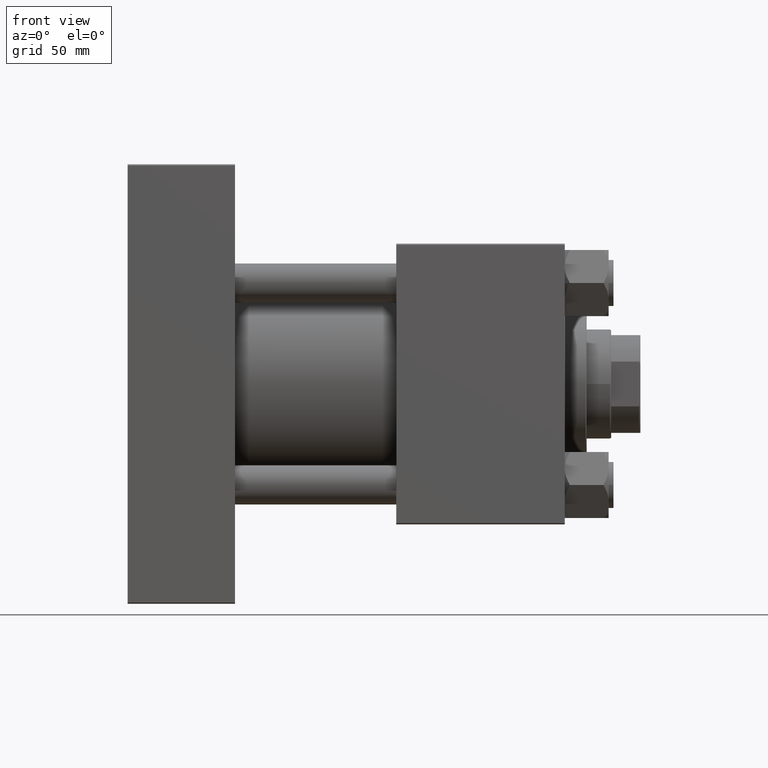
[diagram: clean part render]
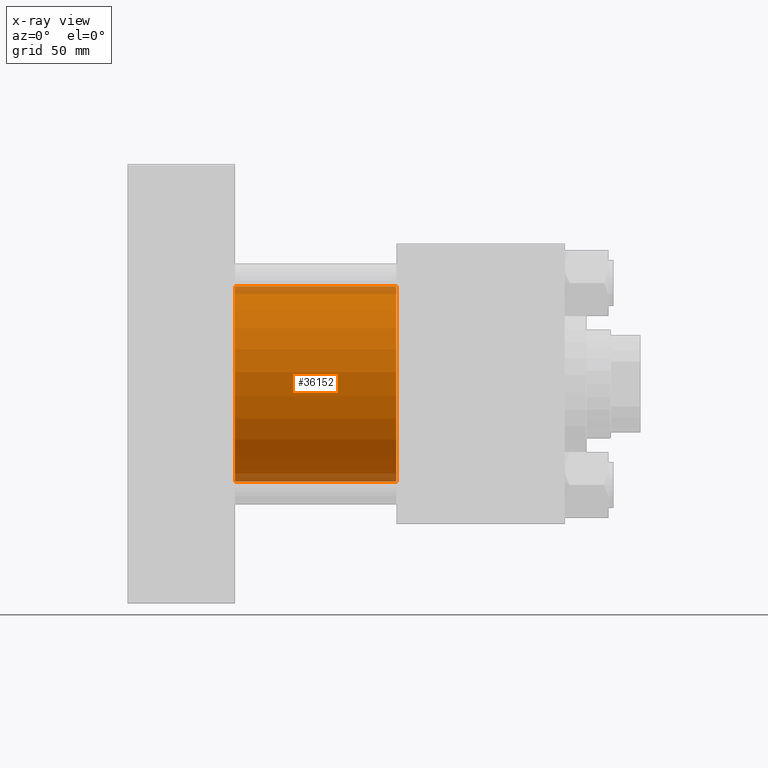
[diagram: x-ray — body ghosted, one internal face saturated and labeled with its STEP entity id]
A machine part, front view, then the same camera in x-ray: the body is ghosted and one INTERNAL B-rep face — a face not visible from any outside direction — is saturated and labeled: STEP entity #36152.
In plain terms, the highlighted cylindrical surface (partial cylindrical patch) has radius 40 mm, axis along (-1, -0, -0).
Its self-contained STEP definition (entity closure, byte-faithful):
#2167 = LINE ( 'NONE', #37579, #16034 ) ;
#2783 = CYLINDRICAL_SURFACE ( 'NONE', #38092, 40.00000000000000000 ) ;
#4569 = CARTESIAN_POINT ( 'NONE',  ( 110.0000000000000000, -2.602085213965210642E-15, 0.000000000000000000 ) ) ;
#6501 = EDGE_CURVE ( 'NONE', #7836, #30189, #17812, .T. ) ;
#7836 = VERTEX_POINT ( 'NONE', #15927 ) ;
#11012 = ORIENTED_EDGE ( 'NONE', *, *, #34172, .T. ) ;
#12239 = ORIENTED_EDGE ( 'NONE', *, *, #6501, .T. ) ;
#13770 = DIRECTION ( 'NONE',  ( -1.000000000000000000, -0.000000000000000000, -0.000000000000000000 ) ) ;
#15321 = CARTESIAN_POINT ( 'NONE',  ( 44.00000000000000000, -2.602085213965210642E-15, 40.00000000000000000 ) ) ;
#15927 = CARTESIAN_POINT ( 'NONE',  ( 110.0000000000000000, -2.602085213965210642E-15, 40.00000000000000000 ) ) ;
#16034 = VECTOR ( 'NONE', #38094, 1000.000000000000000 ) ;
#16330 = CARTESIAN_POINT ( 'NONE',  ( 110.0000000000000000, -2.602085213965210642E-15, 40.00000000000000000 ) ) ;
#17500 = EDGE_CURVE ( 'NONE', #7836, #27847, #43606, .T. ) ;
#17812 = CIRCLE ( 'NONE', #47910, 40.00000000000000000 ) ;
#19713 = CARTESIAN_POINT ( 'NONE',  ( 44.00000000000000000, 2.296501982624201990E-15, -40.00000000000000000 ) ) ;
#21604 = DIRECTION ( 'NONE',  ( 1.000000000000000000, 0.000000000000000000, 0.000000000000000000 ) ) ;
#21818 = VERTEX_POINT ( 'NONE', #19713 ) ;
#21907 = FACE_OUTER_BOUND ( 'NONE', #36975, .T. ) ;
#25818 = AXIS2_PLACEMENT_3D ( 'NONE', #33813, #21604, #40981 ) ;
#27847 = VERTEX_POINT ( 'NONE', #15321 ) ;
#30189 = VERTEX_POINT ( 'NONE', #44555 ) ;
#31101 = EDGE_CURVE ( 'NONE', #27847, #21818, #46975, .T. ) ;
#33813 = CARTESIAN_POINT ( 'NONE',  ( 44.00000000000000000, -2.602085213965210642E-15, 0.000000000000000000 ) ) ;
#34172 = EDGE_CURVE ( 'NONE', #30189, #21818, #2167, .T. ) ;
#35240 = VECTOR ( 'NONE', #36186, 1000.000000000000000 ) ;
#36152 = ADVANCED_FACE ( 'NONE', ( #21907 ), #2783, .F. ) ;
#36186 = DIRECTION ( 'NONE',  ( -1.000000000000000000, -0.000000000000000000, -0.000000000000000000 ) ) ;
#36975 = EDGE_LOOP ( 'NONE', ( #12239, #11012, #43550, #40704 ) ) ;
#37579 = CARTESIAN_POINT ( 'NONE',  ( 110.0000000000000000, 2.296501982624201990E-15, -40.00000000000000000 ) ) ;
#38092 = AXIS2_PLACEMENT_3D ( 'NONE', #38213, #13770, #44868 ) ;
#38094 = DIRECTION ( 'NONE',  ( -1.000000000000000000, -0.000000000000000000, -0.000000000000000000 ) ) ;
#38213 = CARTESIAN_POINT ( 'NONE',  ( 110.0000000000000000, -2.602085213965210642E-15, 0.000000000000000000 ) ) ;
#40704 = ORIENTED_EDGE ( 'NONE', *, *, #17500, .F. ) ;
#40981 = DIRECTION ( 'NONE',  ( 0.000000000000000000, 0.000000000000000000, -1.000000000000000000 ) ) ;
#43550 = ORIENTED_EDGE ( 'NONE', *, *, #31101, .F. ) ;
#43606 = LINE ( 'NONE', #16330, #35240 ) ;
#44555 = CARTESIAN_POINT ( 'NONE',  ( 110.0000000000000000, 2.296501982624201990E-15, -40.00000000000000000 ) ) ;
#44868 = DIRECTION ( 'NONE',  ( 0.000000000000000000, 0.000000000000000000, 1.000000000000000000 ) ) ;
#46975 = CIRCLE ( 'NONE', #25818, 40.00000000000000000 ) ;
#47398 = DIRECTION ( 'NONE',  ( 1.000000000000000000, 0.000000000000000000, 0.000000000000000000 ) ) ;
#47910 = AXIS2_PLACEMENT_3D ( 'NONE', #4569, #47398, #48400 ) ;
#48400 = DIRECTION ( 'NONE',  ( 0.000000000000000000, 0.000000000000000000, -1.000000000000000000 ) ) ;